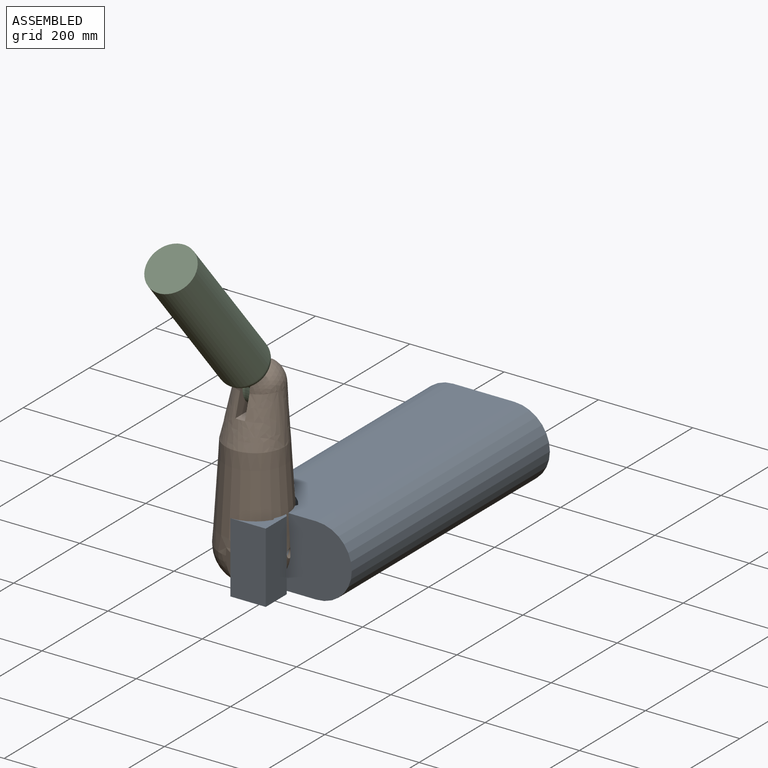
[diagram: assembled view]
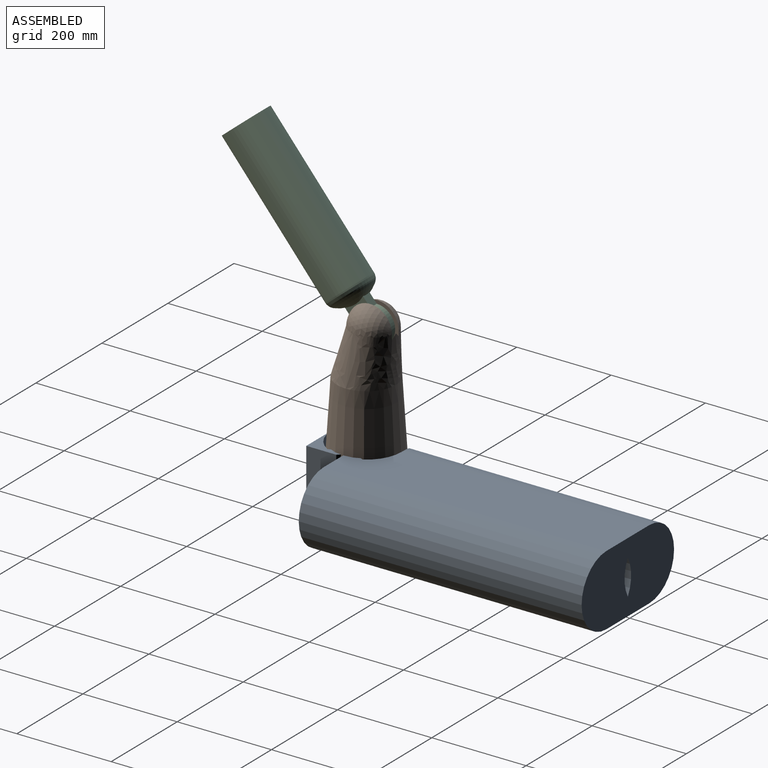
[diagram: assembled view, second angle]
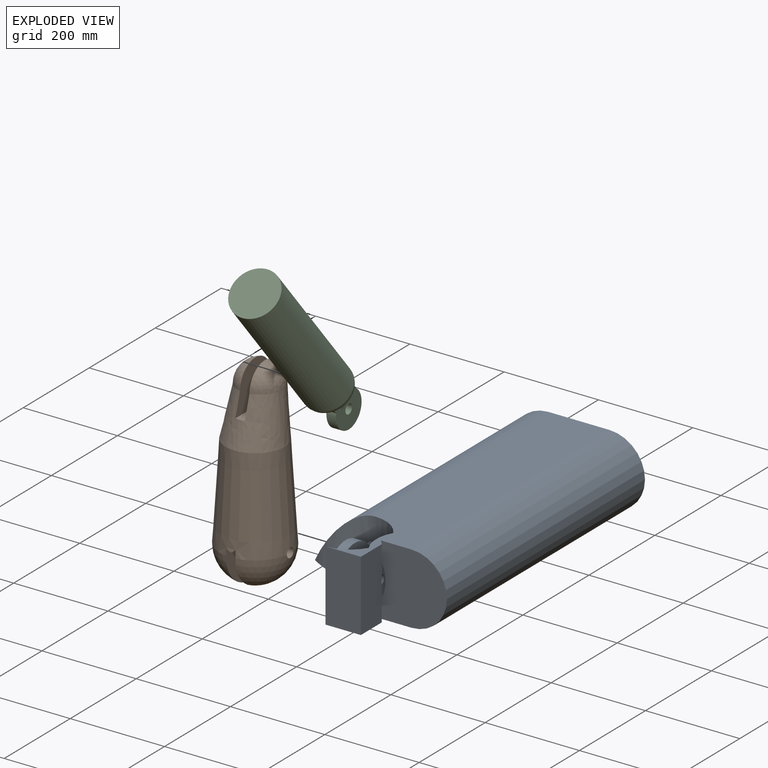
[diagram: exploded view]
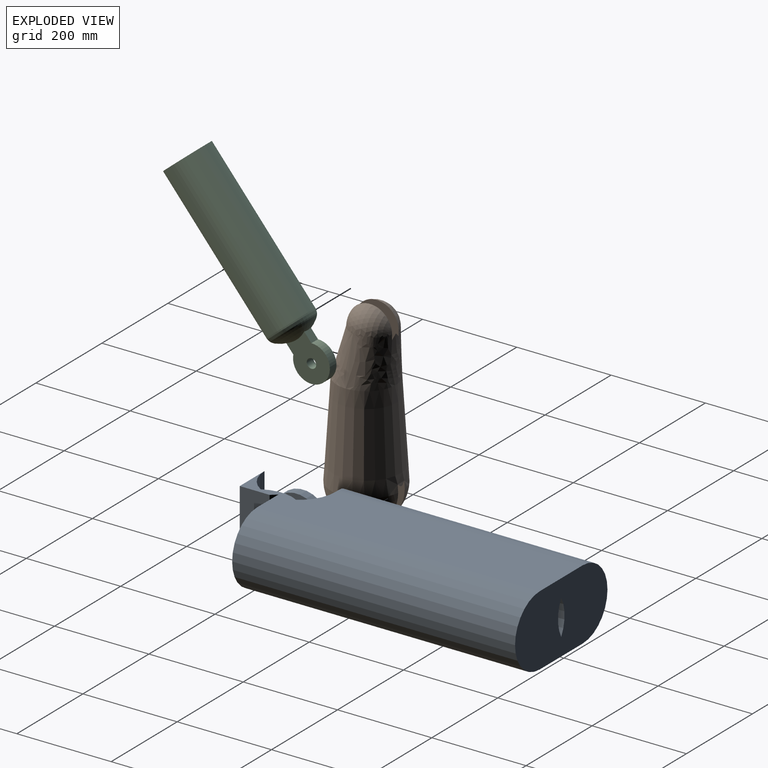
[diagram: exploded view, second angle]
ASSEMBLY  parts=3 mates=2
PART A: 33 faces, bbox 280x150x675 mm
  f0: plane 100x74.83mm, normal (1,0,0), area 5989.6mm2, adj f4,f5,f20,f24,f25,f28,f29,f31
  f1: cylinder r=75mm len=74.83mm, axis (0,-1,0), area 1863.8mm2, adj f3,f7,f14,f27
  f2: cylinder r=75mm len=558.47mm, axis (0,0,-1), area 40648.5mm2, adj f5,f10,f20,f24,f25,f28,f29
  f3: cylinder r=75mm len=150mm, axis (0,-1,0), area 20239.5mm2, adj f1,f7,f8,f9,f13,f16,f17,f18
  f4: plane 150x11.54mm, normal (0.76,0,0.65), area 2290.3mm2, adj f0,f7,f9,f11,f15,f30
  f5: cylinder r=75mm len=600mm, axis (0,0,-1), area 47008.3mm2, adj f0,f2,f10,f11
  f6: cylinder r=75mm len=600mm, axis (0,0,-1), area 141371.7mm2, adj f7,f9,f10,f11
  f7: plane 675x130mm, normal (0,1,0), area 75743.5mm2, adj f1,f3,f4,f6,f8,f10,f11,f12
  f8: cylinder r=75mm len=600mm, axis (0,0,-1), area 130121.7mm2, adj f3,f7,f9,f10
  f9: plane 675x130mm, normal (0,-1,0), area 75743.5mm2, adj f3,f4,f6,f8,f10,f11,f12,f13
  f10: plane 280x150mm, normal (0,0,1), area 36159.6mm2, adj f2,f5,f6,f7,f8,f9
  f11: plane 150x140mm, normal (0,0,-1), area 18079.8mm2, adj f4,f5,f6,f7,f9
  f12: plane 150x75mm, normal (0,0,-1), area 11250mm2, adj f7,f9,f14,f15
  f13: cylinder r=75mm len=74.83mm, axis (0,-1,0), area 1863.7mm2, adj f3,f9,f14,f27
  f14: cylinder r=75mm len=150mm, axis (0,-1,0), area 10454.9mm2, adj f1,f7,f9,f12,f13,f27
  f15: plane 150x63.46mm, normal (1,0,0), area 9519.2mm2, adj f4,f7,f9,f12
  f16: plane 130.23x111.8mm, normal (1,0,0), area 10520.9mm2, adj f3,f17,f19,f26,f32
  f17: plane 25x20mm, normal (0,1,0), area 495.5mm2, adj f3,f16,f18,f26
  f18: plane 130.23x111.8mm, normal (-1,0,0), area 10520.9mm2, adj f3,f17,f19,f26,f32
  f19: plane 25x20mm, normal (0,-1,0), area 495.5mm2, adj f3,f16,f18,f26
  f20: plane 50x10mm, normal (0,0,1), area 429.3mm2, adj f0,f2,f24,f25
  f21: plane 115.9x111.8mm, normal (-1,0,0), area 9804.4mm2, adj f3,f22,f23,f27,f31
  f22: plane 10.9x10mm, normal (0,-1,0), area 58.1mm2, adj f3,f21,f27
  f23: plane 10.9x10mm, normal (0,1,0), area 58.1mm2, adj f3,f21,f27
  f24: plane 50x5.71mm, normal (0,-1,0), area 285.5mm2, adj f0,f2,f20,f28
  f25: plane 50x5.71mm, normal (0,1,0), area 285.5mm2, adj f0,f2,f20,f29
  f26: cylinder r=55.9mm len=111.8mm, axis (-1,0,0), area 5988.1mm2, adj f16,f17,f18,f19
  f27: cylinder r=55.9mm len=111.8mm, axis (1,0,0), area 3867mm2, adj f1,f3,f13,f14,f21,f22,f23
  f28: cylinder r=55.9mm len=12.42mm, axis (1,0,0), area 45.2mm2, adj f0,f2,f24
  f29: cylinder r=55.9mm len=12.42mm, axis (1,0,0), area 45.2mm2, adj f0,f2,f25
  f30: plane 20x10mm, normal (-1,0,0), area 157.1mm2, adj f4,f31
  f31: cylinder r=10mm len=20mm, axis (-1,0,0), area 1256.6mm2, adj f0,f21,f30
  f32: cylinder r=10mm len=20mm, axis (-1,0,0), area 1256.6mm2, adj f16,f18
PART B: 16 faces, bbox 150.5x150.5x421.5 mm
  f0: cone r=75mm half-angle=3.6deg, axis (0,0,-1), area 85772.3mm2, adj f1,f3,f10,f11,f12,f13,f14,f15
  f1: sphere r=75mm, area 15156.9mm2, adj f0,f12,f15
  f2: sphere r=47.5mm, area 5437.1mm2, adj f3,f8,f9
  f3: bspline ~124.97x124.87mm, area 33701.7mm2, adj f0,f2,f4,f5,f6,f7,f8,f9
  f4: sphere r=47.5mm, area 5595.9mm2, adj f3,f7
  f5: cylinder r=47.5mm len=47.47mm, axis (-1,0,0), area 1375.4mm2, adj f3,f6,f7,f8
  f6: plane 61.42x20.04mm, normal (0,0,1), area 1221.3mm2, adj f3,f5,f7,f8
  f7: plane 107.37x94.42mm, normal (-1,0,0), area 7686.5mm2, adj f3,f4,f5,f6
  f8: plane 107.26x94.32mm, normal (1,0,0), area 7372.3mm2, adj f2,f3,f5,f6,f9
  f9: cylinder r=10mm len=38.83mm, axis (1,0,0), area 2326.9mm2, adj f2,f3,f8
  f10: sphere r=75mm, area 15156.9mm2, adj f0,f13,f14
  f11: cylinder r=75mm len=148.83mm, axis (1,0,0), area 4237.5mm2, adj f0,f12,f13
  f12: plane 149.33x148.66mm, normal (1,0,0), area 17181mm2, adj f0,f1,f11,f15
  f13: plane 149.33x148.66mm, normal (-1,0,0), area 17181mm2, adj f0,f10,f11,f14
  f14: cylinder r=10mm len=64.33mm, axis (1,0,0), area 4042mm2, adj f0,f10,f13
  f15: cylinder r=10mm len=64.38mm, axis (1,0,0), area 4040mm2, adj f0,f1,f12
PART C: 10 faces, bbox 108.2x108.2x459.1 mm
  f0: cylinder r=50mm len=341.38mm, axis (0,0,-1), area 107247.9mm2, adj f1,f9
  f1: plane 100x100mm, normal (0,0,-1), area 7854mm2, adj f0
  f2: sphere r=68.01mm, area 5344.3mm2, adj f5,f6,f7,f8,f9
  f3: cylinder r=39.05mm len=78.1mm, axis (1,0,0), area 3822.1mm2, adj f5,f6,f7,f8
  f4: cylinder r=10mm len=20mm, axis (1,0,0), area 1256.6mm2, adj f5,f7
  f5: plane 92.7x78.1mm, normal (-1,0,0), area 5188mm2, adj f2,f3,f4,f6,f8
  f6: plane 23.65x20mm, normal (0,1,0), area 462.4mm2, adj f2,f3,f5,f7
  f7: plane 92.7x78.1mm, normal (1,0,0), area 5188mm2, adj f2,f3,f4,f6,f8
  f8: plane 23.65x20mm, normal (0,-1,0), area 462.4mm2, adj f2,f3,f5,f7
  f9: torus R=30mm, axis (0,0,-1), area 5339.6mm2, adj f0,f2
PLACE A rot(axis=(-1,0,0),90deg) t=(226.95,214.67,204.42)mm fixed
PLACE B t=(161.95,214.67,204.42)mm
PLACE C rot(axis=(-1,0,0),140deg) t=(161.95,-40.3,826.16)mm
MATE revolute B.f14 <-> A.f26  axis (1,0,0) through (151.95,214.67,204.42)mm
MATE revolute C.f3 <-> B.f5  axis (-1,0,0) through (151.95,229.67,504.42)mm
